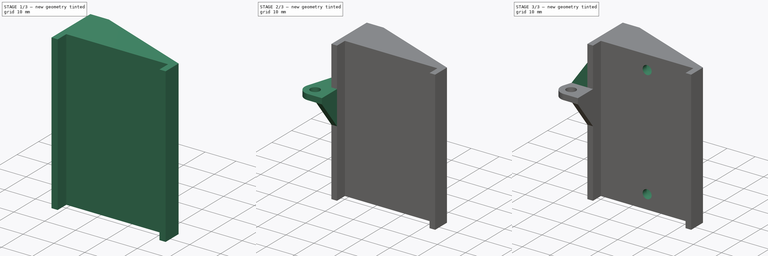
[diagram: build sequence overview — one tinted view per stage of 3, left to right]
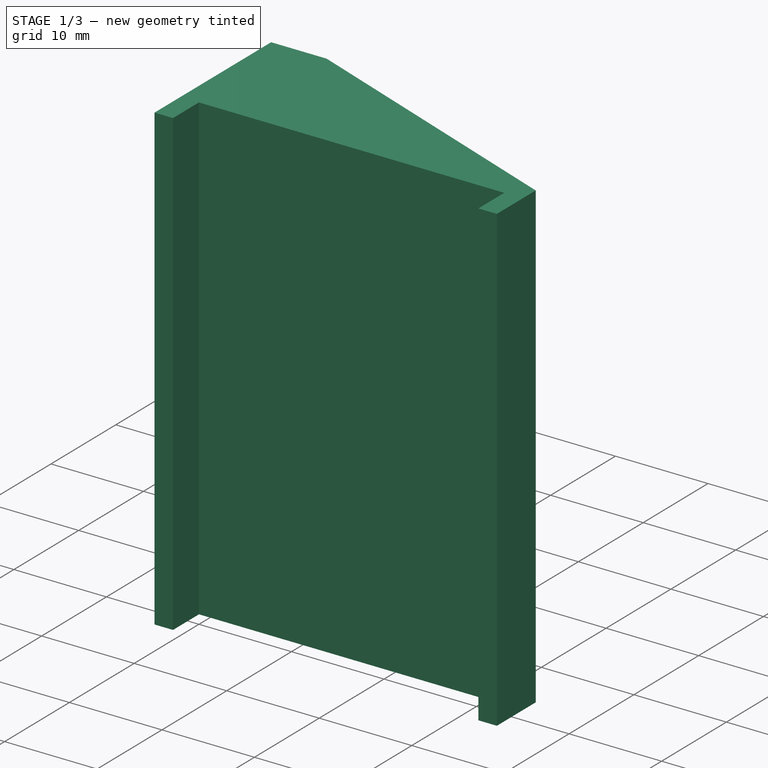
[diagram: stage 1 of 3 — iso view after this stage's code; geometry added in this stage tinted green]
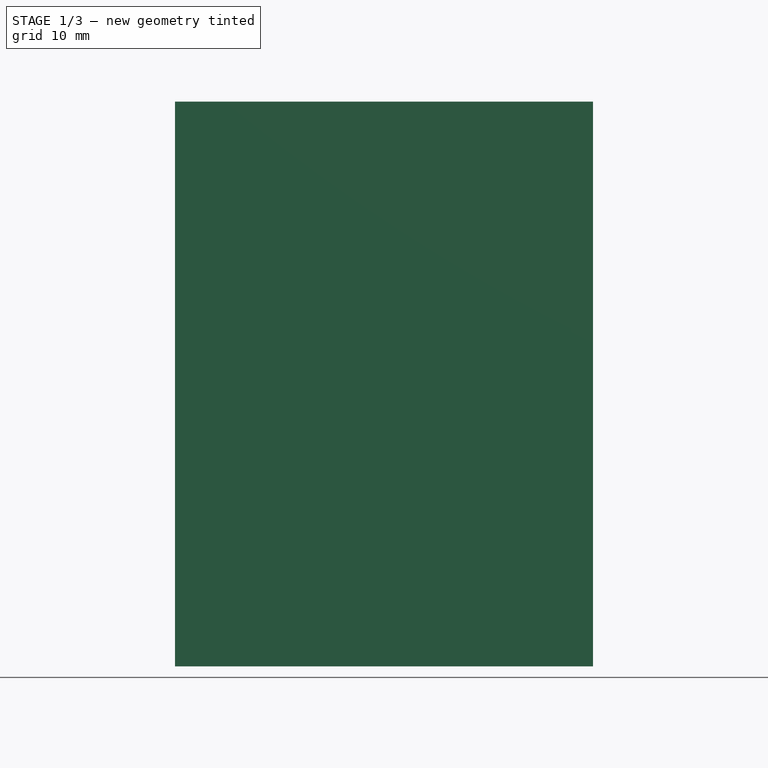
[diagram: stage 1 of 3 — front view after this stage's code; geometry added in this stage tinted green]
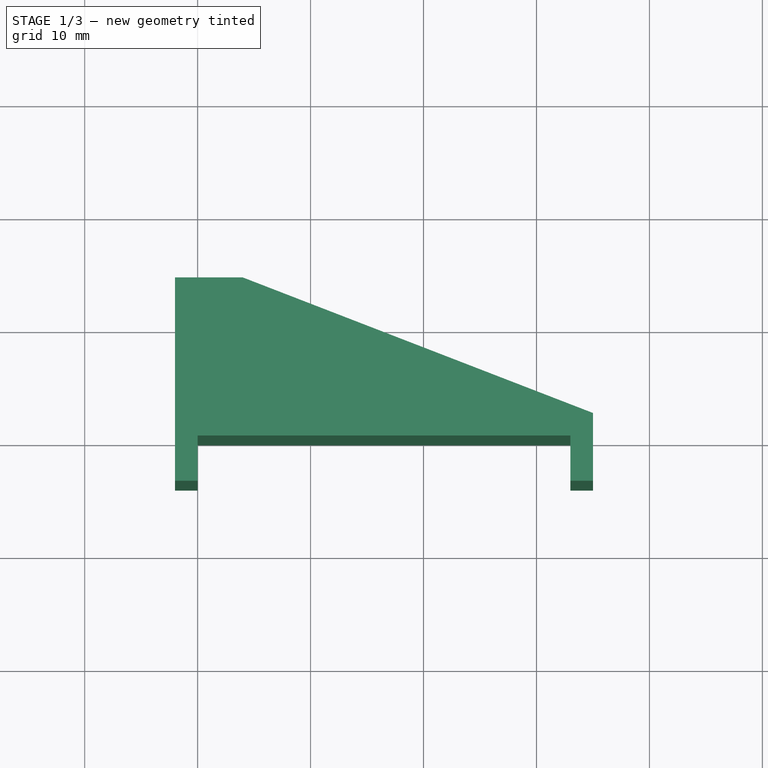
[diagram: stage 1 of 3 — top view after this stage's code; geometry added in this stage tinted green]
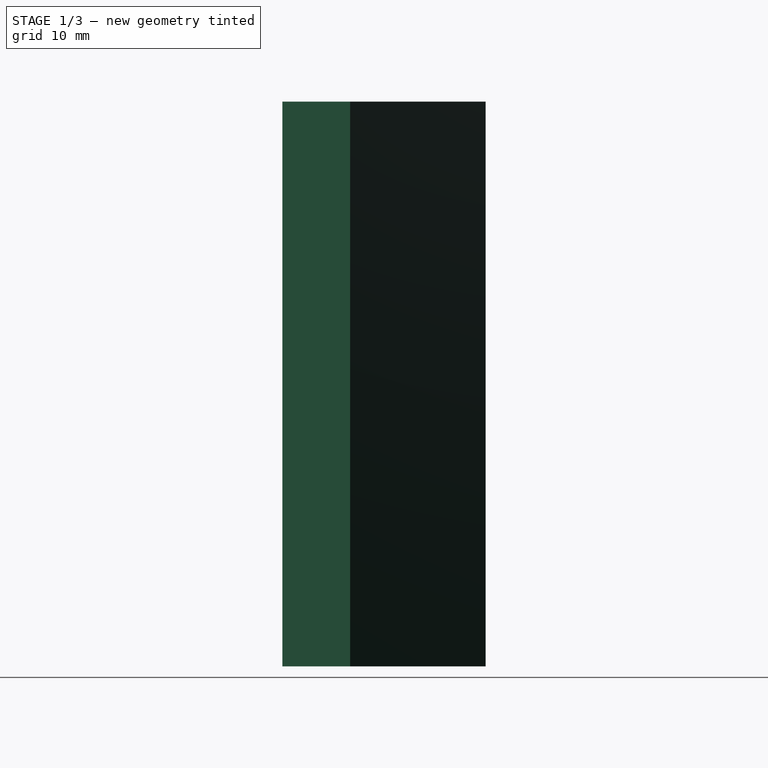
[diagram: stage 1 of 3 — right view after this stage's code; geometry added in this stage tinted green]
FCSTD DOCUMENT  (FreeCAD 0.18.1R)
Label: Laser Mount
License: All rights reserved
LicenseURL: http://en.wikipedia.org/wiki/All_rights_reserved
objects: Sketcher::SketchObject×10, PartDesign::Pocket×4, PartDesign::Pad×3, Spreadsheet::Sheet×1, PartDesign::AdditiveLoft×1, PartDesign::Body×1
note: 27 computed .brp shape members not serialized (recipe doc carries the construction recipe); baked Part::Feature solids carry a one-line shape summary decoded from their .brp

FEATURE [Sketcher::SketchObject] Sketch  label="Sketch Base"
  MapMode = 5
  Support = -> [XY_Plane]
  sketch-geometry (9):
    g0: LineSegment StartX=0 StartY=0 StartZ=0 EndX=33 EndY=0 EndZ=0
    g1: LineSegment StartX=33 StartY=0 StartZ=0 EndX=33 EndY=-4 EndZ=0
    g2: LineSegment StartX=33 StartY=-4 StartZ=0 EndX=35 EndY=-4 EndZ=0
    g3: LineSegment StartX=35 StartY=-4 StartZ=0 EndX=35 EndY=2 EndZ=0
    g4: LineSegment StartX=35 StartY=2 StartZ=0 EndX=4 EndY=14 EndZ=0
    g5: LineSegment StartX=0 StartY=0 StartZ=0 EndX=0 EndY=-4 EndZ=0
    g6: LineSegment StartX=-2 StartY=-4 StartZ=0 EndX=0 EndY=-4 EndZ=0
    g7: LineSegment StartX=-2 StartY=-4 StartZ=0 EndX=-2 EndY=14 EndZ=0
    g8: LineSegment StartX=-2 StartY=14 StartZ=0 EndX=4 EndY=14 EndZ=0
  constraints (26):
    c: Coincident(g-1,g0)
    c: PointOnObject(g0,g-1)
    c: Coincident(g0,g1)
    c: Vertical(g1)
    c: Coincident(g1,g2)
    c: Horizontal(g2)
    c: Coincident(g2,g3)
    c: Vertical(g3)
    c: Coincident(g3,g4)
    c: Coincident(g0,g5)
    c: PointOnObject(g5,g-2)
    c: Distance(g0) = 33
    c: Distance(g1) = 4
    c: Distance(g2) = 2
    c: DistanceY(g0,g3) = 2
    c: Horizontal(g5,g1)
    c: Coincident(g6,g5)
    c: Horizontal(g6)
    c: Distance(g6) = 2
    c: Coincident(g6,g7)
    c: Vertical(g7)
    c: Coincident(g7,g8)
    c: Coincident(g8,g4)
    c: Horizontal(g8)
    c: Distance(g0,g8) = 14
    c: Distance(g8) = 6
FEATURE [PartDesign::Pad] Pad  label="Base"
  Length = 50
  Length2 = 100
  Profile = -> Sketch
  Type = 0
FEATURE [Sketcher::SketchObject] Sketch001  label="Sketch Upper Mount Support"
  ExternalGeometry = -> [Pad]
  MapMode = 5
  Placement = pos=(-2,0,0) rot=(0.57735,-0.57735,-0.57735;2.0944rad)
  Support = -> [Pad]
  sketch-geometry (3):
    g0: LineSegment StartX=4 StartY=34 StartZ=0 EndX=11.7 EndY=34 EndZ=0
    g1: LineSegment StartX=4 StartY=24 StartZ=0 EndX=4 EndY=34 EndZ=0
    g2: LineSegment StartX=4 StartY=24 StartZ=0 EndX=11.7 EndY=34 EndZ=0
  constraints (9):
    c: Coincident(g1,g0)
    c: Horizontal(g0)
    c: Vertical(g1)
    c: PointOnObject(g0,g-3)
    c: Distance(g0) = 7.7
    c: Distance(g-3,g0) = 34
    c: Coincident(g2,g1)
    c: Coincident(g2,g0)
    c: Distance(g1) = 10
FEATURE [Sketcher::SketchObject] Sketch002  label="Sketch Pocket Mount"
  ExternalGeometry = -> [Pad]
  MapMode = 5
  Placement = pos=(0,14,0) rot=(0,0.707107,0.707107;3.14159rad)
  Support = -> [Pad]
  sketch-geometry (4):
    g0: LineSegment StartX=-4 StartY=0 StartZ=0 EndX=2 EndY=0 EndZ=0
    g1: LineSegment StartX=2 StartY=0 StartZ=0 EndX=2 EndY=12 EndZ=0
    g2: LineSegment StartX=2 StartY=12 StartZ=0 EndX=-4 EndY=12 EndZ=0
    g3: LineSegment StartX=-4 StartY=12 StartZ=0 EndX=-4 EndY=0 EndZ=0
  constraints (10):
    c: Coincident(g0,g1)
    c: Coincident(g1,g2)
    c: Coincident(g2,g3)
    c: Coincident(g3,g0)
    c: Horizontal(g2)
    c: Vertical(g1)
    c: Vertical(g3)
    c: Coincident(g-3,g0)
    c: Coincident(g0,g-3)
    c: Distance(g1) = 12
FEATURE [PartDesign::Pocket] Pocket  label="Pocket Mount"
  BaseFeature = -> Pad
  Length = 2
  Length2 = 100
  Profile = -> Sketch002
  Type = 0
FEATURE [Sketcher::SketchObject] Sketch003  label="Sketch Hole Mount"
  ExternalGeometry = -> [Pocket]
  MapMode = 5
  Placement = pos=(0,12,-3.6e-15) rot=(0,0.707107,0.707107;3.14159rad)
  Support = -> [Pocket]
  expr: Constraints[2] = Screws.m3td
  sketch-geometry (1):
    g0: Circle CenterX=-1 CenterY=6 CenterZ=0 NormalX=0 NormalY=0 NormalZ=1 AngleXU=0 Radius=1.4
  constraints (3):
    c: DistanceX(g0,g-3) = 3
    c: DistanceY(g-3,g0) = 6
    c: Diameter(g0) = 2.8
FEATURE [Spreadsheet::Sheet] Spreadsheet  label="Screws"
  cells = A1=Screw Type; B1=Length; D1=Diameter Loose; F1=Diameter Tight; A2=M3 Tapping; B2=m3tl; C2(m3tl)==12mm; D2=m3tD; E2(m3tD)==3.4mm; F2=m3td; G2(m3td)==2.8mm; A3=M3; B3=m3l; C3(m3l)==30mm; D3=m3D; E3(m3D)==3.2mm; F3=m3d; G3(m3d)==2.8mm
FEATURE [PartDesign::Pocket] Pocket001  label="Hole Mount"
  BaseFeature = -> Pocket
  Length = 11
  Length2 = 100
  Profile = -> Sketch003
  Type = 0
  expr: Length = Screws.m3tl - 1mm
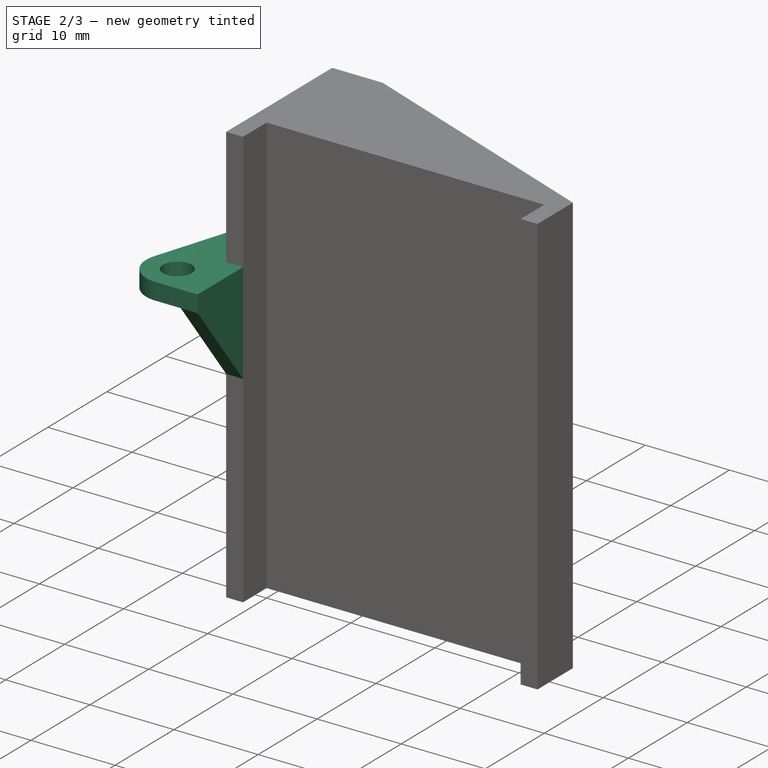
[diagram: stage 2 of 3 — iso view after this stage's code; geometry added in this stage tinted green]
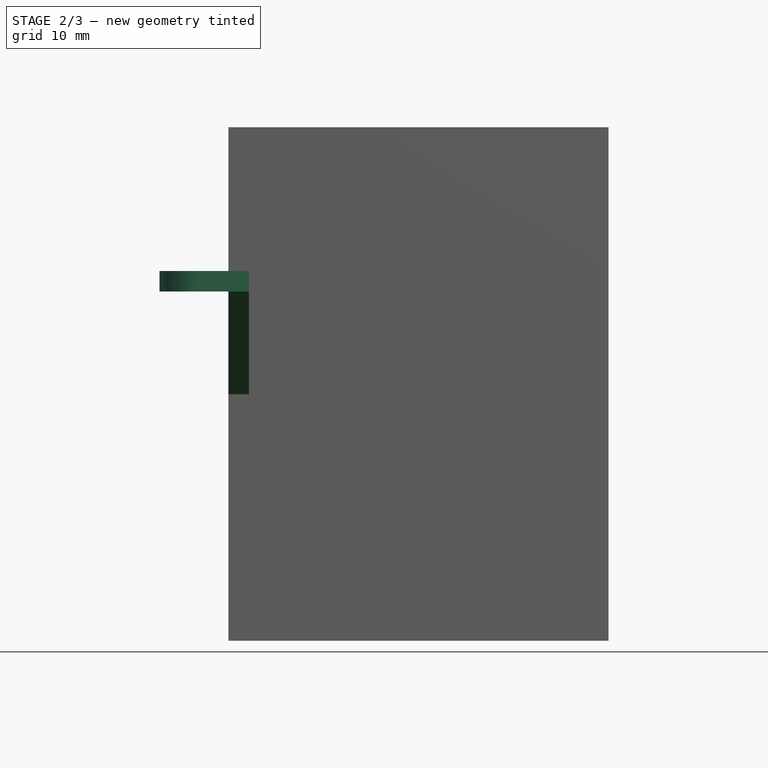
[diagram: stage 2 of 3 — front view after this stage's code; geometry added in this stage tinted green]
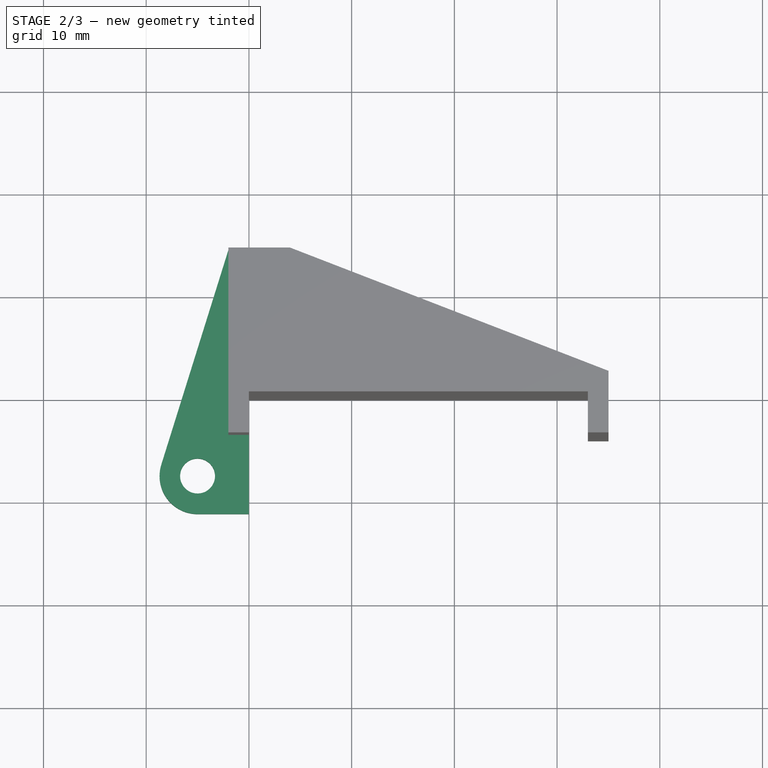
[diagram: stage 2 of 3 — top view after this stage's code; geometry added in this stage tinted green]
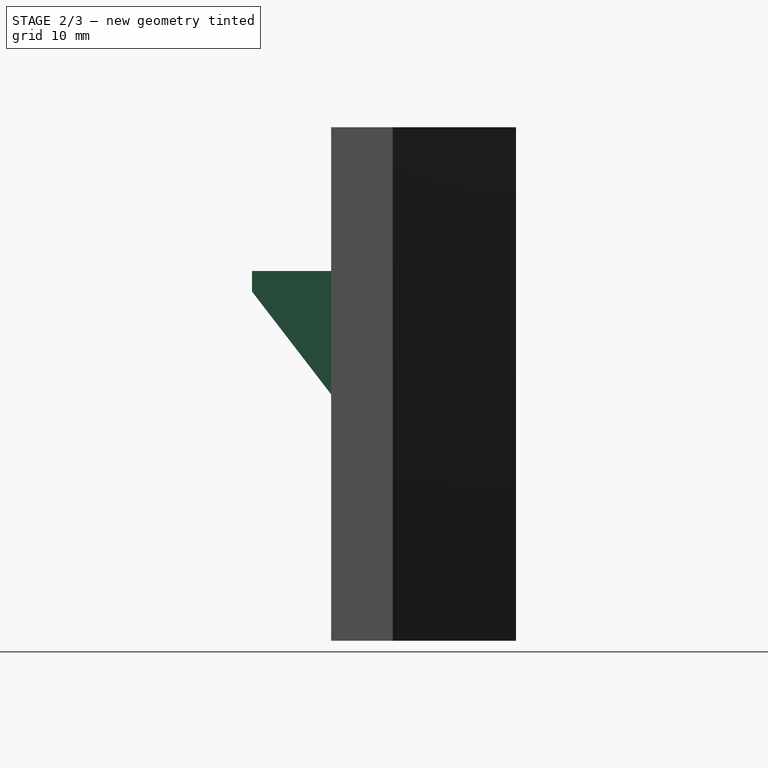
[diagram: stage 2 of 3 — right view after this stage's code; geometry added in this stage tinted green]
FEATURE [PartDesign::Pad] Pad001  label="Upper Mount Support"
  BaseFeature = -> Pocket001
  Length = 2
  Length2 = 100
  Profile = -> Sketch001
  Reversed = true
  Type = 0
FEATURE [Sketcher::SketchObject] Sketch004  label="Sketch Pad Upper Mount"
  ExternalGeometry = -> [Pad001]
  MapMode = 5
  Placement = pos=(0,0,34) rot=(0,0,1;0rad)
  Support = -> [Pad001]
  expr: Constraints[3] = Screws.m3tD
  sketch-geometry (9):
    g0: LineSegment StartX=-2 StartY=-11.7 StartZ=0 EndX=-5 EndY=-11.7 EndZ=0
    g1: LineSegment StartX=-8.53151 StartY=-6.89616 StartZ=0 EndX=-2 EndY=14 EndZ=0
    g2: Circle CenterX=-5 CenterY=-8 CenterZ=0 NormalX=0 NormalY=0 NormalZ=1 AngleXU=0 Radius=1.7
    g3: LineSegment StartX=-2 StartY=14 StartZ=0 EndX=-2 EndY=-4 EndZ=0
    g4: LineSegment StartX=-2 StartY=-4 StartZ=0 EndX=0 EndY=-4 EndZ=0
    g5: LineSegment StartX=0 StartY=-4 StartZ=0 EndX=0 EndY=-11.7 EndZ=0
    g6: LineSegment StartX=0 StartY=-11.7 StartZ=0 EndX=-2 EndY=-11.7 EndZ=0
    g7: ArcOfCircle CenterX=-5 CenterY=-8 CenterZ=0 NormalX=0 NormalY=0 NormalZ=1 AngleXU=0 Radius=3.7 StartAngle=2.83864 EndAngle=4.71239
    g8: LineSegment [constr] StartX=-8.7 StartY=-8 StartZ=0 EndX=-6.7 EndY=-8 EndZ=0
  constraints (22):
    c: Coincident(g0,g-3)
    c: Horizontal(g0)
    c: DistanceX(g2,g0) = 3
    c: Diameter(g2) = 3.4
    c: Coincident(g1,g3)
    c: Coincident(g3,g-5)
    c: Coincident(g3,g4)
    c: Coincident(g4,g-5)
    c: Coincident(g4,g5)
    c: Coincident(g5,g-3)
    c: Coincident(g5,g6)
    c: Coincident(g6,g0)
    c: Coincident(g-4,g1)
    c: Tangent(g7,g0) = 1.5708
    c: Tangent(g7,g1) = 1.5708
    c: Coincident(g7,g2)
    c: DistanceY(g2,g3) = 4
    c: PointOnObject(g8,g7)
    c: PointOnObject(g8,g2)
    c: Horizontal(g8)
    c: Horizontal(g8,g2)
    c: Distance(g8) = 2
FEATURE [PartDesign::Pad] Pad002  label="Pad Upper Mount"
  BaseFeature = -> Pad001
  Length = 2
  Length2 = 100
  Profile = -> Sketch004
  Type = 0
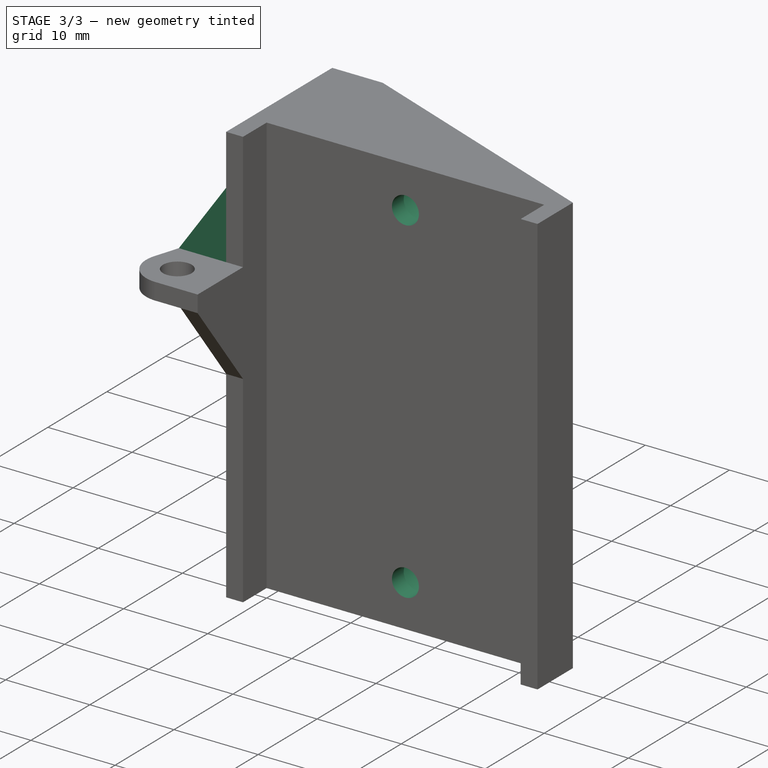
[diagram: stage 3 of 3 — iso view after this stage's code; geometry added in this stage tinted green]
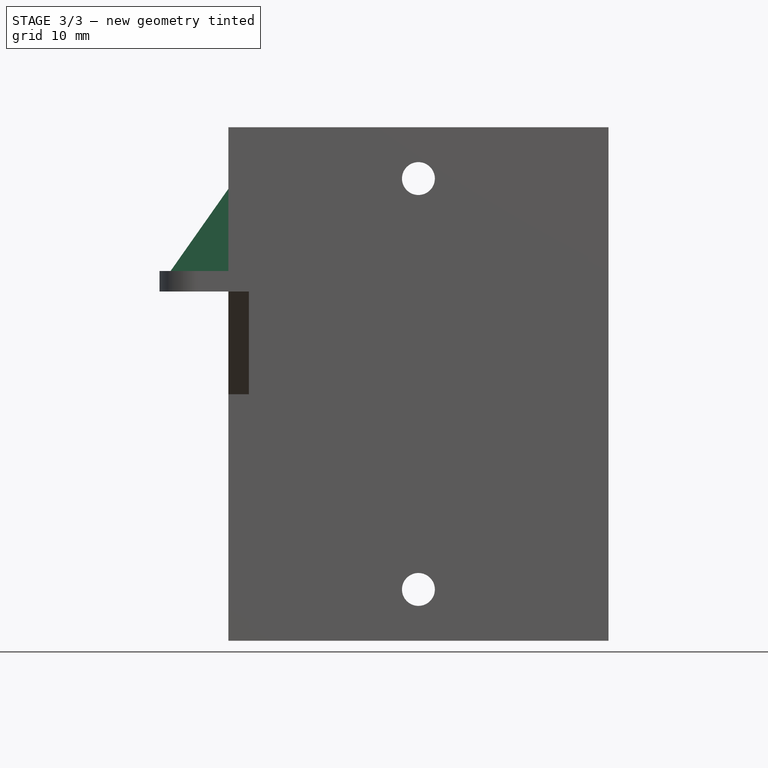
[diagram: stage 3 of 3 — front view after this stage's code; geometry added in this stage tinted green]
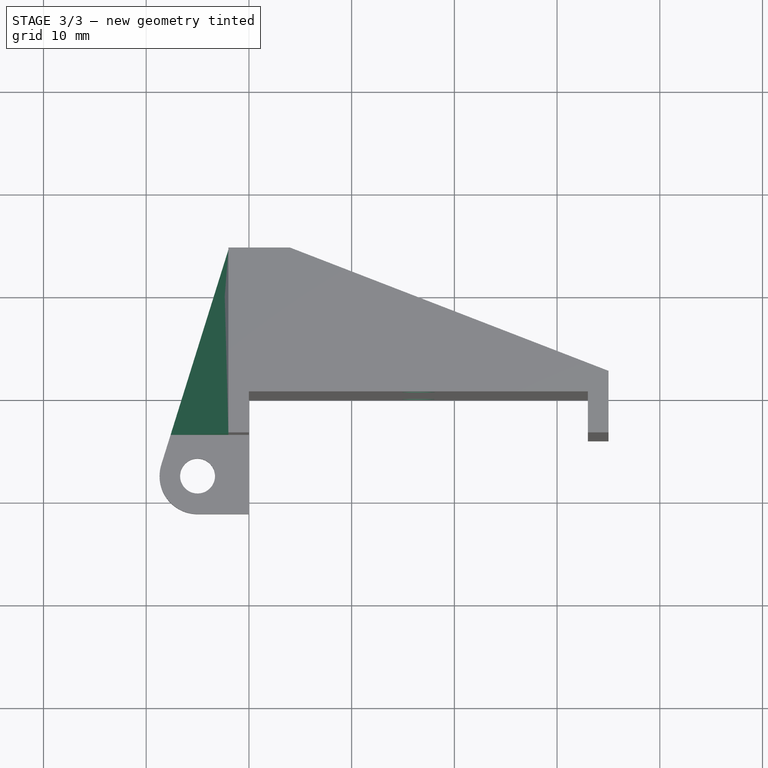
[diagram: stage 3 of 3 — top view after this stage's code; geometry added in this stage tinted green]
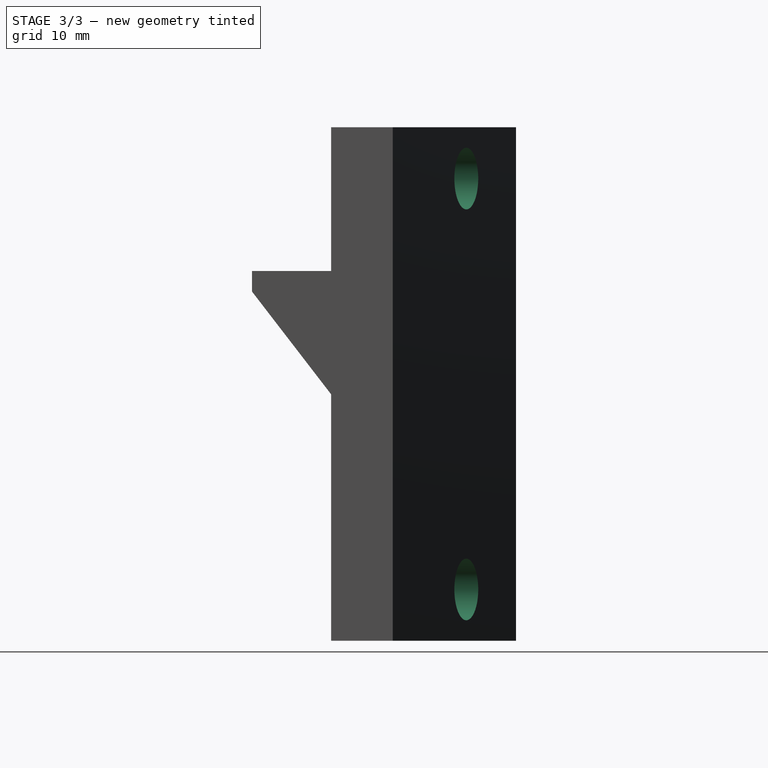
[diagram: stage 3 of 3 — right view after this stage's code; geometry added in this stage tinted green]
FEATURE [Sketcher::SketchObject] Sketch006  label="Sketch Reference Line"
  ExternalGeometry = -> [Pad002]
  MapMode = 5
  Placement = pos=(0,0,36) rot=(0,0,1;0rad)
  Support = -> [Pad002]
  sketch-geometry (1):
    g0: LineSegment StartX=-2 StartY=14 StartZ=0 EndX=-7.62625 EndY=-4 EndZ=0
  constraints (3):
    c: Coincident(g0,g-3)
    c: PointOnObject(g0,g-3)
    c: Horizontal(g0,g-4)
FEATURE [Sketcher::SketchObject] Sketch007  label="Sketch Loft Upper Mount Base"
  ExternalGeometry = -> [Pad002,Sketch006]
  MapMode = 5
  Placement = pos=(0,-4,0) rot=(1,0,0;1.5708rad)
  Support = -> [Pad002]
  sketch-geometry (3):
    g0: LineSegment StartX=-7.62625 StartY=36 StartZ=0 EndX=-2 EndY=36 EndZ=0
    g1: LineSegment StartX=-2 StartY=36 StartZ=0 EndX=-2 EndY=44 EndZ=0
    g2: LineSegment StartX=-2 StartY=44 StartZ=0 EndX=-7.62625 EndY=36 EndZ=0
  constraints (7):
    c: Coincident(g0,g-4)
    c: Coincident(g0,g-3)
    c: Coincident(g0,g1)
    c: PointOnObject(g1,g-3)
    c: Coincident(g1,g2)
    c: Coincident(g2,g0)
    c: Distance(g1) = 8
FEATURE [Sketcher::SketchObject] Sketch008  label="Sketch Loft Upper Mount "Point""
  ExternalGeometry = -> [Pad002]
  MapMode = 5
  Placement = pos=(0,14,0) rot=(0,0.707107,0.707107;3.14159rad)
  Support = -> [Pad002]
  sketch-geometry (3):
    g0: LineSegment StartX=2 StartY=36 StartZ=0 EndX=2 EndY=36.0071 EndZ=0
    g1: LineSegment StartX=2 StartY=36.0071 StartZ=0 EndX=2.00707 EndY=36 EndZ=0
    g2: LineSegment StartX=2.00707 StartY=36 StartZ=0 EndX=2 EndY=36 EndZ=0
  constraints (8):
    c: Coincident(g-4,g0)
    c: PointOnObject(g0,g-3)
    c: Coincident(g0,g1)
    c: PointOnObject(g1,g-4)
    c: Coincident(g1,g2)
    c: Coincident(g2,g0)
    c: Equal(g0,g2)
    c: Distance(g1) = 0.01
FEATURE [PartDesign::AdditiveLoft] AdditiveLoft  label="Loft Upper Mount"
  BaseFeature = -> Pad002
  Closed = false
  Profile = -> Sketch007
  Ruled = false
  Sections = -> [Sketch008]
FEATURE [Sketcher::SketchObject] Sketch009  label="Sketch Laser Mount Holes"
  ExternalGeometry = -> [AdditiveLoft]
  MapMode = 5
  Placement = pos=(0,0,0) rot=(1,0,0;1.5708rad)
  Support = -> [AdditiveLoft]
  expr: Constraints[2] = Screws.m3D
  sketch-geometry (6):
    g0: Circle CenterX=16.5 CenterY=45 CenterZ=0 NormalX=0 NormalY=0 NormalZ=1 AngleXU=0 Radius=1.6
    g1: Circle CenterX=16.5 CenterY=5 CenterZ=0 NormalX=0 NormalY=0 NormalZ=1 AngleXU=0 Radius=1.6
    g2: LineSegment [constr] StartX=0 StartY=50 StartZ=0 EndX=16.5 EndY=45 EndZ=0
    g3: LineSegment [constr] StartX=33 StartY=50 StartZ=0 EndX=16.5 EndY=45 EndZ=0
    g4: LineSegment [constr] StartX=0 StartY=0 StartZ=0 EndX=16.5 EndY=5 EndZ=0
    g5: LineSegment [constr] StartX=33 StartY=-9e-16 StartZ=0 EndX=16.5 EndY=5 EndZ=0
  constraints (14):
    c: Equal(g1,g0)
    c: DistanceY(g1,g0) = 40
    c: Diameter(g0) = 3.2
    c: Coincident(g2,g-4)
    c: Coincident(g2,g0)
    c: Coincident(g3,g-3)
    c: Coincident(g3,g0)
    c: Coincident(g4,g-1)
    c: Coincident(g4,g1)
    c: Coincident(g5,g-3)
    c: Coincident(g5,g1)
    c: Equal(g2,g3)
    c: Equal(g3,g5)
    c: Equal(g5,g4)
FEATURE [PartDesign::Pocket] Pocket002  label="Laser Mount Holes"
  BaseFeature = -> AdditiveLoft
  Length = 5
  Length2 = 100
  Profile = -> Sketch009
  Type = 1
FEATURE [Sketcher::SketchObject] Sketch010  label="Sketch Screw Head Cuts"
  ExternalGeometry = -> [Pocket002]
  MapMode = 5
  Placement = pos=(0,14,0) rot=(0,0.707107,0.707107;3.14159rad)
  Support = -> [Pocket002]
  sketch-geometry (2):
    g0: Circle CenterX=-16.5 CenterY=45 CenterZ=0 NormalX=0 NormalY=0 NormalZ=1 AngleXU=0 Radius=3
    g1: Circle CenterX=-16.5 CenterY=5 CenterZ=0 NormalX=0 NormalY=0 NormalZ=1 AngleXU=0 Radius=3
  constraints (4):
    c: Coincident(g0,g-3)
    c: Coincident(g1,g-4)
    c: Equal(g0,g1)
    c: Diameter(g0) = 6
FEATURE [PartDesign::Pocket] Pocket003  label="Screw Head Cuts"
  BaseFeature = -> Pocket002
  Length = 12
  Length2 = 100
  Profile = -> Sketch010
  Type = 0
FEATURE [PartDesign::Body] Body  label="Laser Mount"
  Group = -> [Sketch,Pad,Sketch002,Pocket,Sketch003,Pocket001,Sketch001,Pad001,Sketch004,Pad002,Sketch006,Sketch007,Sketch008,AdditiveLoft,Sketch009,Pocket002,Sketch010,Pocket003]
  Origin = -> Origin
  Placement = pos=(0,0,0) rot=(1,0,0;3.14159rad)
  Tip = -> Pocket003
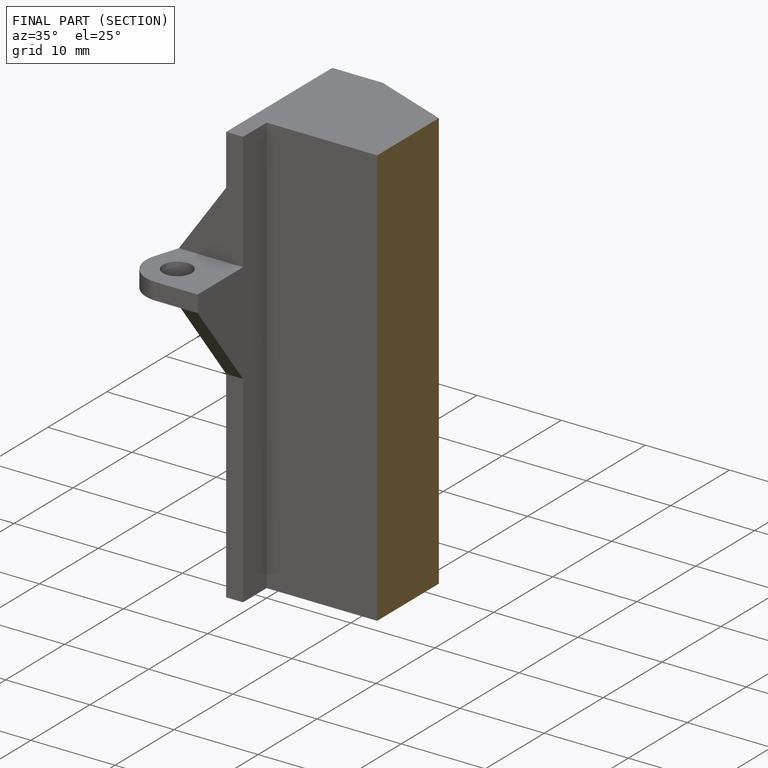
[diagram: finished part — half-section view (interior)]
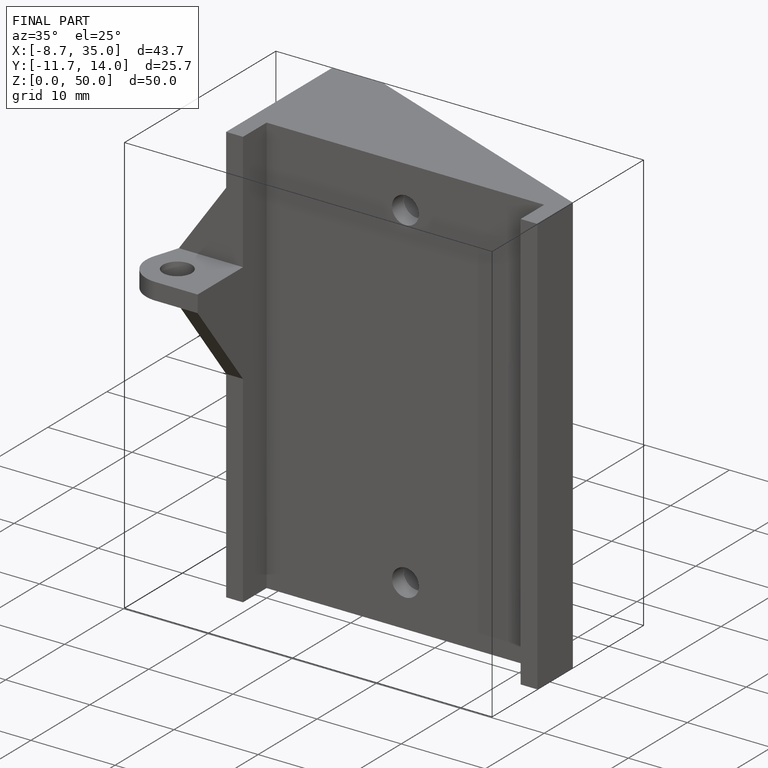
[diagram: finished part — iso view with bounding-box wireframe]
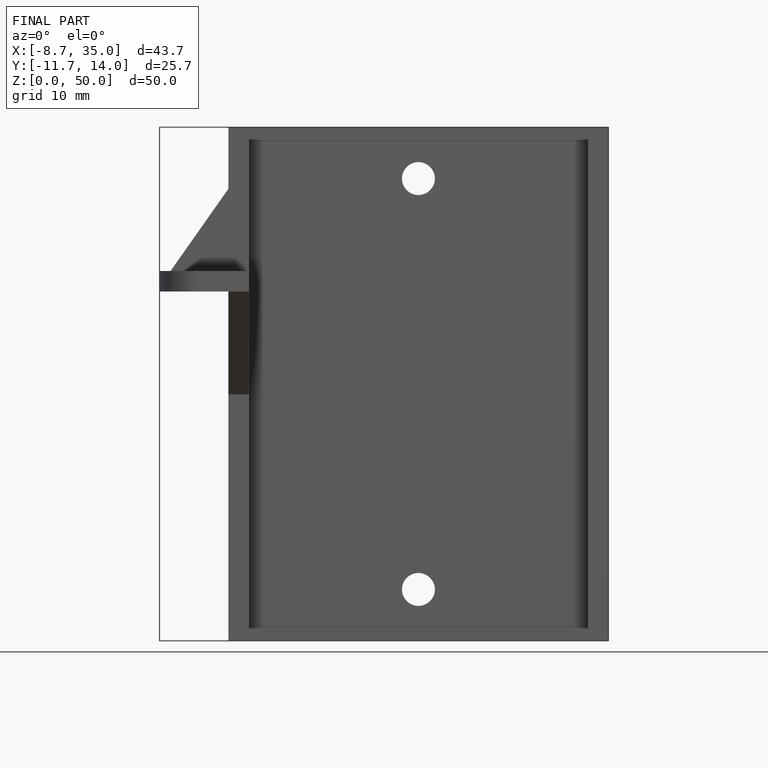
[diagram: finished part — front view with bounding-box wireframe]
